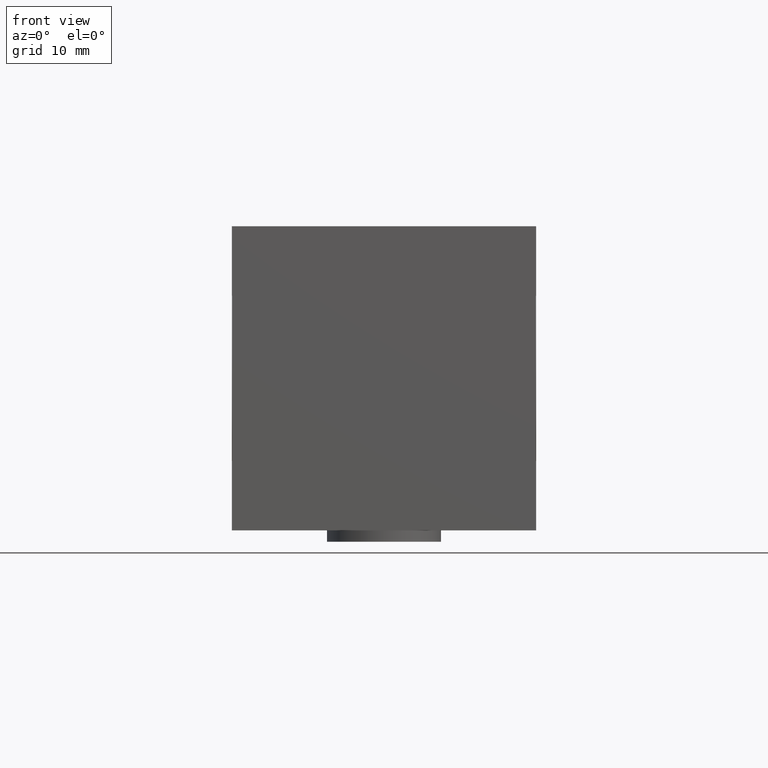
[diagram: clean part render]
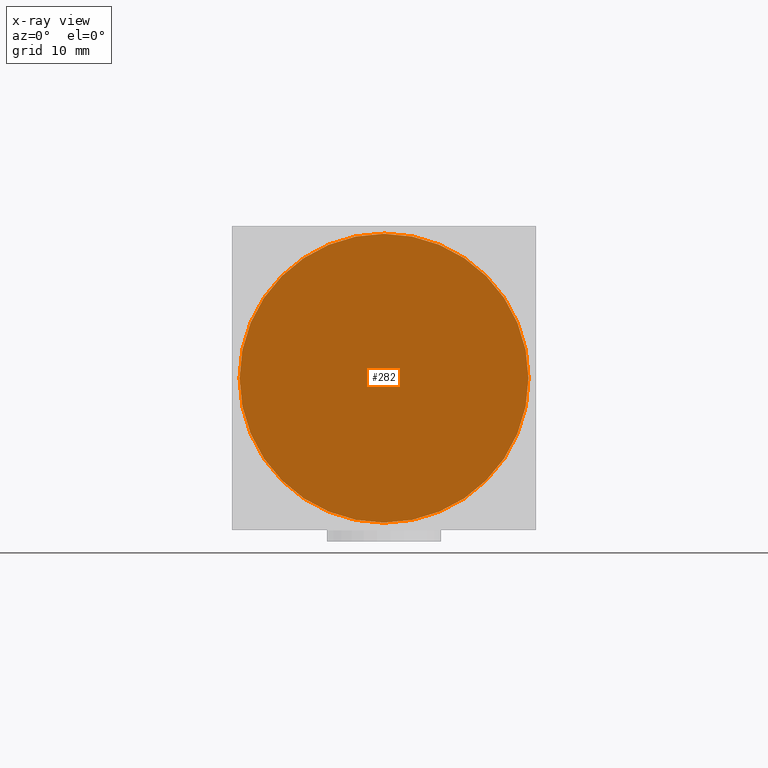
[diagram: x-ray — body ghosted, one internal face saturated and labeled with its STEP entity id]
A machine part, front view, then the same camera in x-ray: the body is ghosted and one INTERNAL B-rep face — a face not visible from any outside direction — is saturated and labeled: STEP entity #282.
In plain terms, the highlighted planar face has unit normal (0, 1, 0).
Its self-contained STEP definition (entity closure, byte-faithful):
#282 = ADVANCED_FACE( '', ( #627 ), #628, .F. );
#627 = FACE_OUTER_BOUND( '', #1072, .T. );
#628 = PLANE( '', #1073 );
#1072 = EDGE_LOOP( '', ( #1663 ) );
#1073 = AXIS2_PLACEMENT_3D( '', #1664, #1665, #1666 );
#1663 = ORIENTED_EDGE( '', *, *, #2573, .F. );
#1664 = CARTESIAN_POINT( '', ( 0.000000000000000, 0.000000000000000, 0.000000000000000 ) );
#1665 = DIRECTION( '', ( 1.00000000000000, 0.000000000000000, -0.000000000000000 ) );
#1666 = DIRECTION( '', ( -0.000000000000000, 0.000000000000000, -1.00000000000000 ) );
#2573 = EDGE_CURVE( '', #3066, #3066, #3067, .T. );
#3066 = VERTEX_POINT( '', #3717 );
#3067 = CIRCLE( '', #3718, 19.0000000000000 );
#3717 = CARTESIAN_POINT( '', ( 0.000000000000000, 0.000000000000000, -19.0000000000000 ) );
#3718 = AXIS2_PLACEMENT_3D( '', #4330, #4331, #4332 );
#4330 = CARTESIAN_POINT( '', ( 0.000000000000000, 0.000000000000000, 0.000000000000000 ) );
#4331 = DIRECTION( '', ( 1.00000000000000, 0.000000000000000, -0.000000000000000 ) );
#4332 = DIRECTION( '', ( -0.000000000000000, 0.000000000000000, -1.00000000000000 ) );